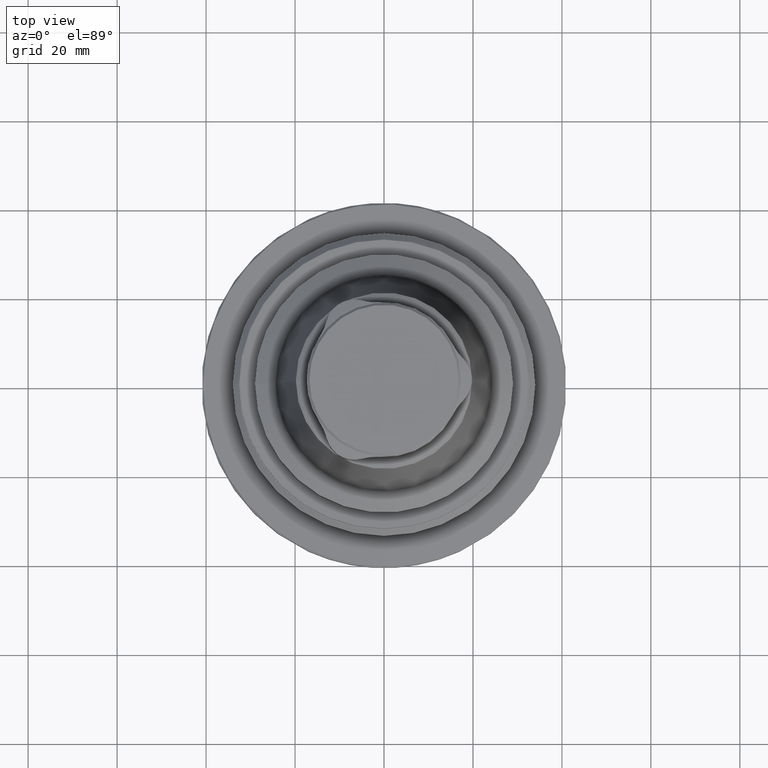
[diagram: clean part render]
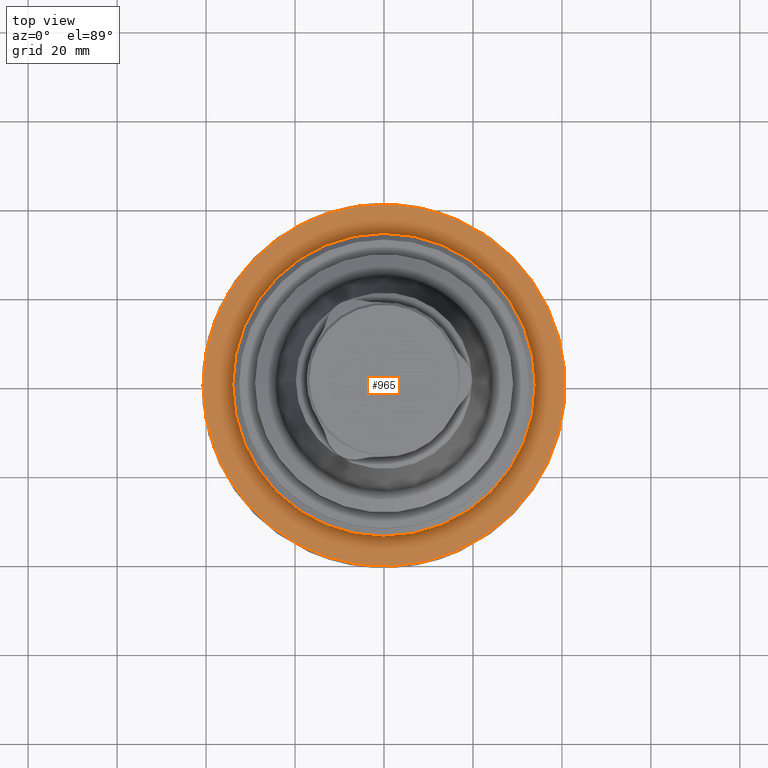
[diagram: same view with one face highlighted and labeled with its STEP entity id]
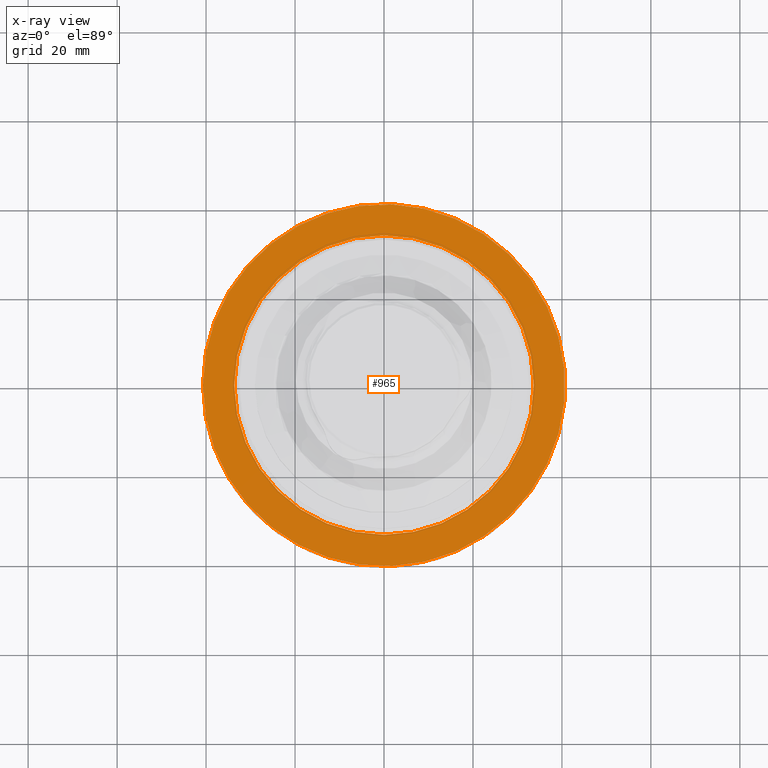
[diagram: x-ray of the same camera — body ghosted, the highlighted face saturated]
A machine part, top view. The second image highlights one B-rep face of the part: STEP entity #965.
The next image is the same camera in x-ray: the body ghosted, the highlighted face saturated — about 0% of this face is hidden behind the body in this view.
In plain terms, the highlighted planar face has unit normal (-0, -0, -1).
Its self-contained STEP definition (entity closure, byte-faithful):
#44=PLANE('',#1079);
#90=CIRCLE('',#1078,33.65);
#91=CIRCLE('',#1080,40.7);
#316=ORIENTED_EDGE('',*,*,#511,.T.);
#317=ORIENTED_EDGE('',*,*,#512,.F.);
#511=EDGE_CURVE('',#627,#627,#90,.T.);
#512=EDGE_CURVE('',#628,#628,#91,.T.);
#627=VERTEX_POINT('',#1711);
#628=VERTEX_POINT('',#1714);
#770=EDGE_LOOP('',(#316));
#771=EDGE_LOOP('',(#317));
#865=FACE_BOUND('',#770,.T.);
#866=FACE_BOUND('',#771,.T.);
#965=ADVANCED_FACE('',(#865,#866),#44,.F.);
#1078=AXIS2_PLACEMENT_3D('',#1710,#1290,#1291);
#1079=AXIS2_PLACEMENT_3D('',#1712,#1292,#1293);
#1080=AXIS2_PLACEMENT_3D('',#1713,#1294,#1295);
#1290=DIRECTION('',(-7.30126435159279E-33,-9.52839055771651E-18,-1.));
#1291=DIRECTION('',(-1.,-8.32667268468868E-17,2.89465139560709E-33));
#1292=DIRECTION('',(-7.30126435159279E-33,-9.52839055771651E-18,-1.));
#1293=DIRECTION('',(-1.,-8.32667268468868E-17,2.89465139560709E-33));
#1294=DIRECTION('',(-7.30126435159279E-33,-9.52839055771651E-18,-1.));
#1295=DIRECTION('',(-1.,-8.32667268468868E-17,2.89465139560709E-33));
#1710=CARTESIAN_POINT('',(7.88665112559661E-15,-9.1472549354079E-17,-1.));
#1711=CARTESIAN_POINT('',(-33.65,-2.89339790775182E-15,-1.));
#1712=CARTESIAN_POINT('',(-33.65,-2.89339790775182E-15,-1.));
#1713=CARTESIAN_POINT('',(7.88665112559661E-15,-9.1472549354079E-17,-1.));
#1714=CARTESIAN_POINT('',(-40.7,-3.48042833202237E-15,-1.));